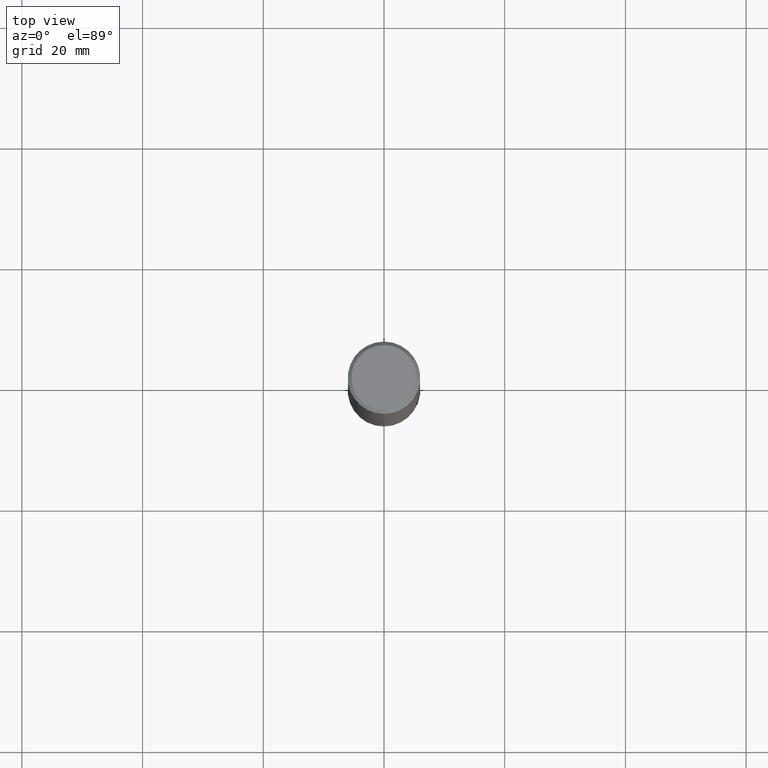
[diagram: clean part render]
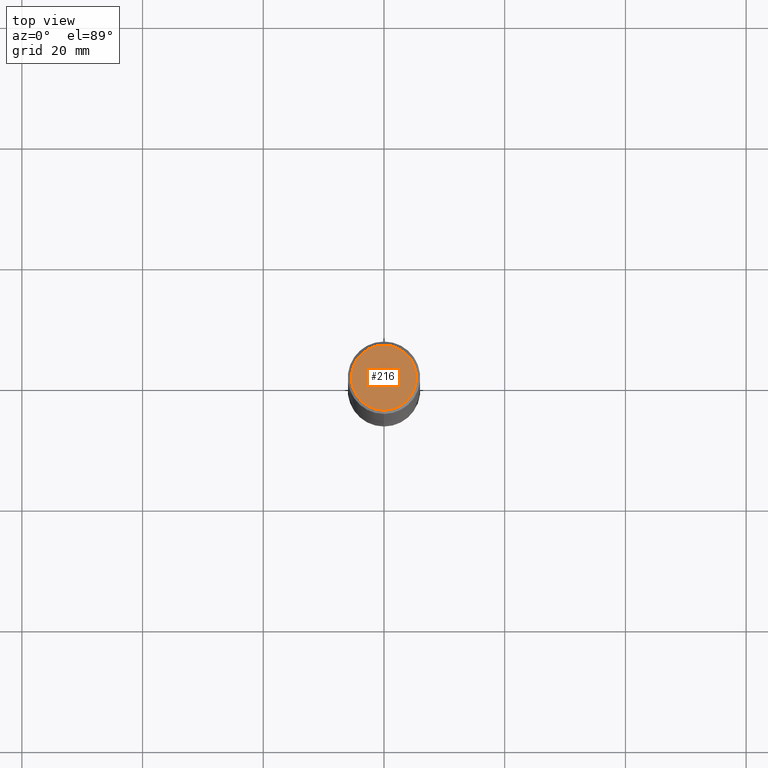
[diagram: same view with one face highlighted and labeled with its STEP entity id]
A machine part, top view. The second image highlights one B-rep face of the part: STEP entity #216.
In plain terms, the highlighted planar face has unit normal (-0, 0, 1).
Its self-contained STEP definition (entity closure, byte-faithful):
#110=EDGE_CURVE('',#138,#194,#257,.T.);
#138=VERTEX_POINT('',#291);
#194=VERTEX_POINT('',#353);
#216=ADVANCED_FACE('',(#378),#379,.T.);
#218=EDGE_CURVE('',#194,#138,#381,.T.);
#257=CIRCLE('',#417,5.4);
#291=CARTESIAN_POINT('',(6.61287431064084E-016,-5.4,0.0));
#353=CARTESIAN_POINT('',(0.0,5.4,0.0));
#378=FACE_OUTER_BOUND('',#567,.T.);
#379=PLANE('',#568);
#381=CIRCLE('',#571,5.4);
#417=AXIS2_PLACEMENT_3D('',#590,#591,#592);
#567=EDGE_LOOP('',(#747,#748));
#568=AXIS2_PLACEMENT_3D('',#749,#750,#751);
#571=AXIS2_PLACEMENT_3D('',#752,#753,#754);
#590=CARTESIAN_POINT('',(0.0,0.0,0.0));
#591=DIRECTION('',(0.0,0.0,-1.0));
#592=DIRECTION('',(0.0,1.0,0.0));
#747=ORIENTED_EDGE('',*,*,#218,.F.);
#748=ORIENTED_EDGE('',*,*,#110,.F.);
#749=CARTESIAN_POINT('',(0.0,2.7,0.0));
#750=DIRECTION('',(-0.0,0.0,1.0));
#751=DIRECTION('',(0.0,-1.0,0.0));
#752=CARTESIAN_POINT('',(0.0,0.0,0.0));
#753=DIRECTION('',(0.0,0.0,-1.0));
#754=DIRECTION('',(0.0,1.0,0.0));